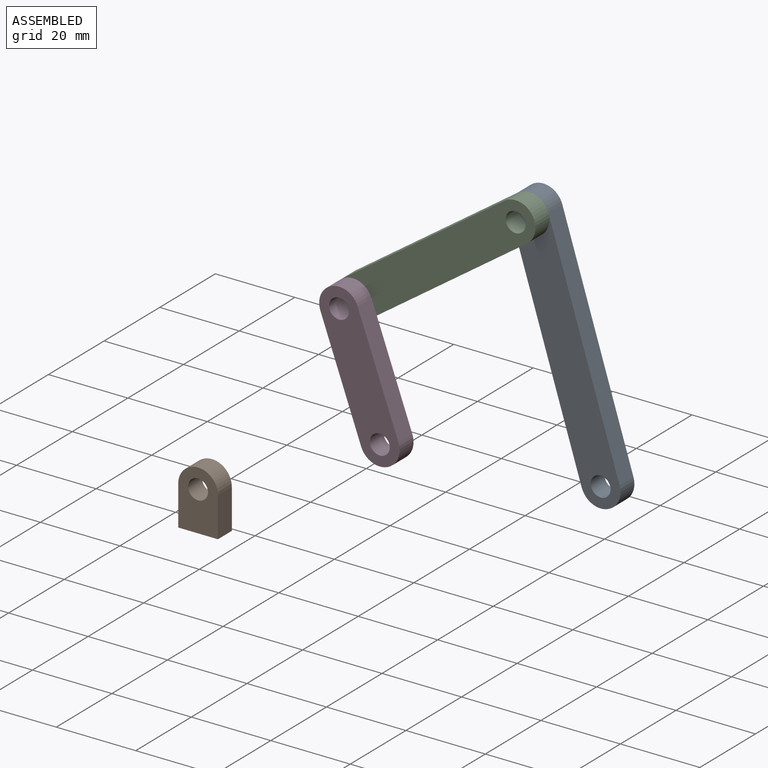
[diagram: assembled view]
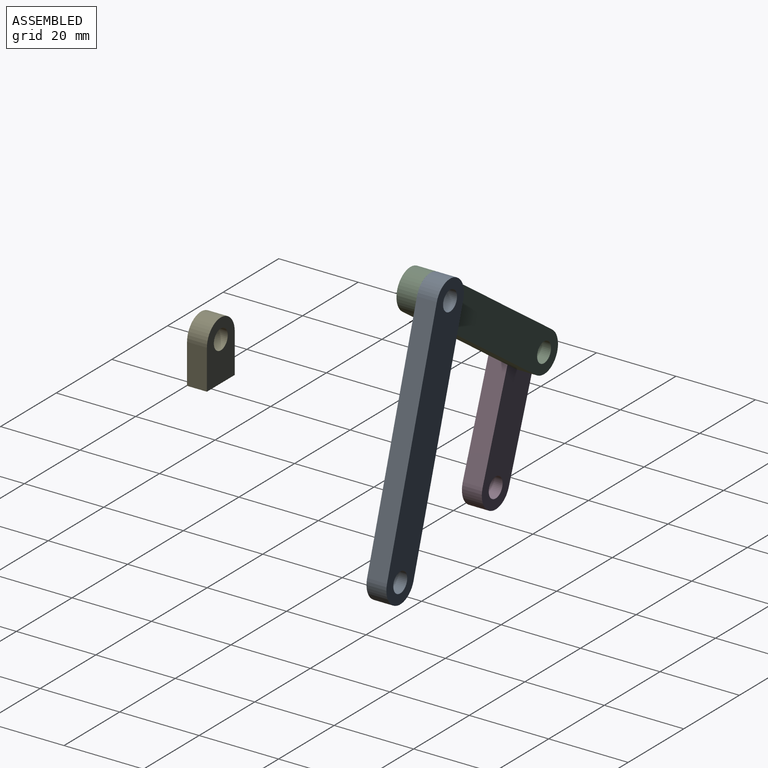
[diagram: assembled view, second angle]
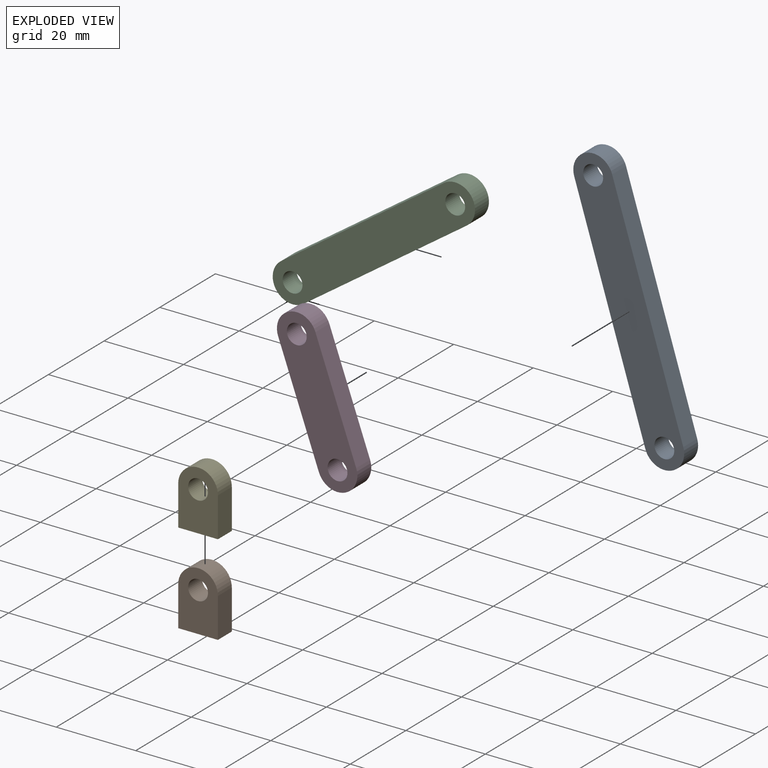
[diagram: exploded view]
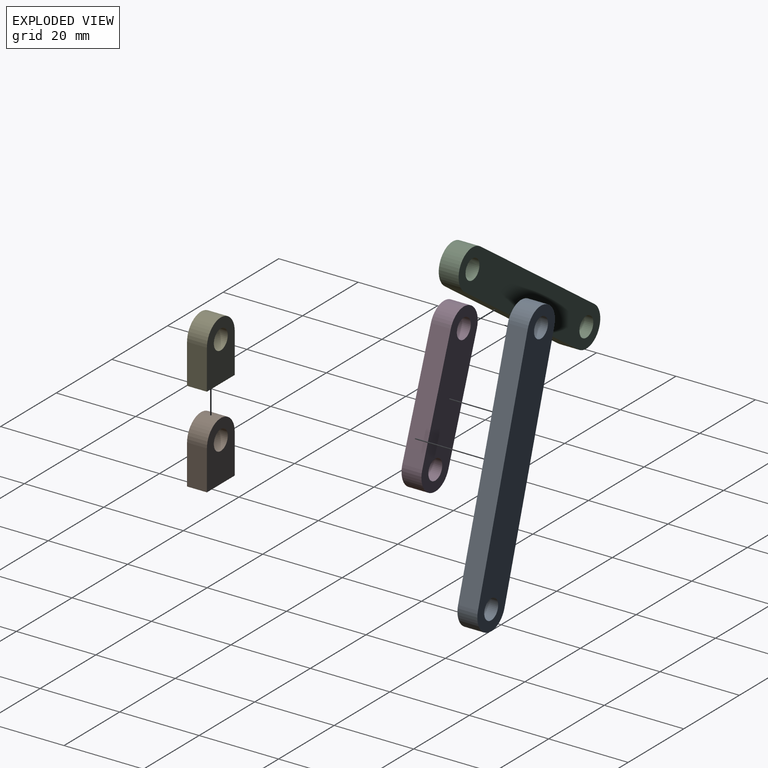
[diagram: exploded view, second angle]
ASSEMBLY  parts=5 mates=2
PART A: 8 faces, bbox 10x5x70 mm
  f0: plane 60x5mm, normal (1,0,0), area 300mm2, adj f1,f5,f6,f7
  f1: cylinder r=5mm len=10mm, axis (0,1,0), area 78.5mm2, adj f0,f2,f6,f7
  f2: plane 60x5mm, normal (-1,0,0), area 300mm2, adj f1,f5,f6,f7
  f3: cylinder r=2.5mm len=5mm, axis (0,1,0), area 78.5mm2, adj f6,f7
  f4: cylinder r=2.5mm len=5mm, axis (0,1,0), area 78.5mm2, adj f6,f7
  f5: cylinder r=5mm len=10mm, axis (0,1,0), area 78.5mm2, adj f0,f2,f6,f7
  f6: plane 70x10mm, normal (0,-1,0), area 639.3mm2, adj f0,f1,f2,f3,f4,f5
  f7: plane 70x10mm, normal (0,1,0), area 639.3mm2, adj f0,f1,f2,f3,f4,f5
PART B: 7 faces, bbox 10x5x15 mm
  f0: plane 10x5mm, normal (1,0,0), area 50mm2, adj f1,f3,f5,f6
  f1: cylinder r=5mm len=10mm, axis (0,1,0), area 78.5mm2, adj f0,f2,f5,f6
  f2: plane 10x5mm, normal (-1,0,0), area 50mm2, adj f1,f3,f5,f6
  f3: plane 10x5mm, normal (0,0,-1), area 50mm2, adj f0,f2,f5,f6
  f4: cylinder r=2.5mm len=5mm, axis (0,1,0), area 78.5mm2, adj f5,f6
  f5: plane 15x10mm, normal (0,-1,0), area 119.6mm2, adj f0,f1,f2,f3,f4
  f6: plane 15x10mm, normal (0,1,0), area 119.6mm2, adj f0,f1,f2,f3,f4
PART C: 8 faces, bbox 10x5x60 mm
  f0: plane 50x5mm, normal (1,0,0), area 250mm2, adj f1,f5,f6,f7
  f1: cylinder r=5mm len=10mm, axis (0,1,0), area 78.5mm2, adj f0,f2,f6,f7
  f2: plane 50x5mm, normal (-1,0,0), area 250mm2, adj f1,f5,f6,f7
  f3: cylinder r=2.5mm len=5mm, axis (0,1,0), area 78.5mm2, adj f6,f7
  f4: cylinder r=2.5mm len=5mm, axis (0,1,0), area 78.5mm2, adj f6,f7
  f5: cylinder r=5mm len=10mm, axis (0,1,0), area 78.5mm2, adj f0,f2,f6,f7
  f6: plane 60x10mm, normal (0,-1,0), area 539.3mm2, adj f0,f1,f2,f3,f4,f5
  f7: plane 60x10mm, normal (0,1,0), area 539.3mm2, adj f0,f1,f2,f3,f4,f5
PART D: 8 faces, bbox 10x5x40 mm
  f0: plane 30x5mm, normal (1,0,0), area 150mm2, adj f1,f5,f6,f7
  f1: cylinder r=5mm len=10mm, axis (0,1,0), area 78.5mm2, adj f0,f2,f6,f7
  f2: plane 30x5mm, normal (-1,0,0), area 150mm2, adj f1,f5,f6,f7
  f3: cylinder r=2.5mm len=5mm, axis (0,1,0), area 78.5mm2, adj f6,f7
  f4: cylinder r=2.5mm len=5mm, axis (0,1,0), area 78.5mm2, adj f6,f7
  f5: cylinder r=5mm len=10mm, axis (0,1,0), area 78.5mm2, adj f0,f2,f6,f7
  f6: plane 40x10mm, normal (0,-1,0), area 339.3mm2, adj f0,f1,f2,f3,f4,f5
  f7: plane 40x10mm, normal (0,1,0), area 339.3mm2, adj f0,f1,f2,f3,f4,f5
PART E: same geometry as B
PLACE A rot(axis=(0,-1,0),17.4deg) t=(-12.97,33.56,-32.65)mm
PLACE B t=(-59.75,-44.37,-16.06)mm
PLACE C rot(axis=(0,-1,0),125deg) t=(-30.88,28.56,24.61)mm
PLACE D rot(axis=(0,-1,0),20deg) t=(-61.56,23.56,-32.29)mm fixed
PLACE E t=(-59.75,-44.37,-16.06)mm fixed
MATE revolute C.f1 <-> D.f1  axis (0,-1,0) through (-71.82,23.56,-4.1)mm
MATE revolute C.f4 <-> A.f1  axis (0,1,0) through (-30.88,28.56,24.61)mm
